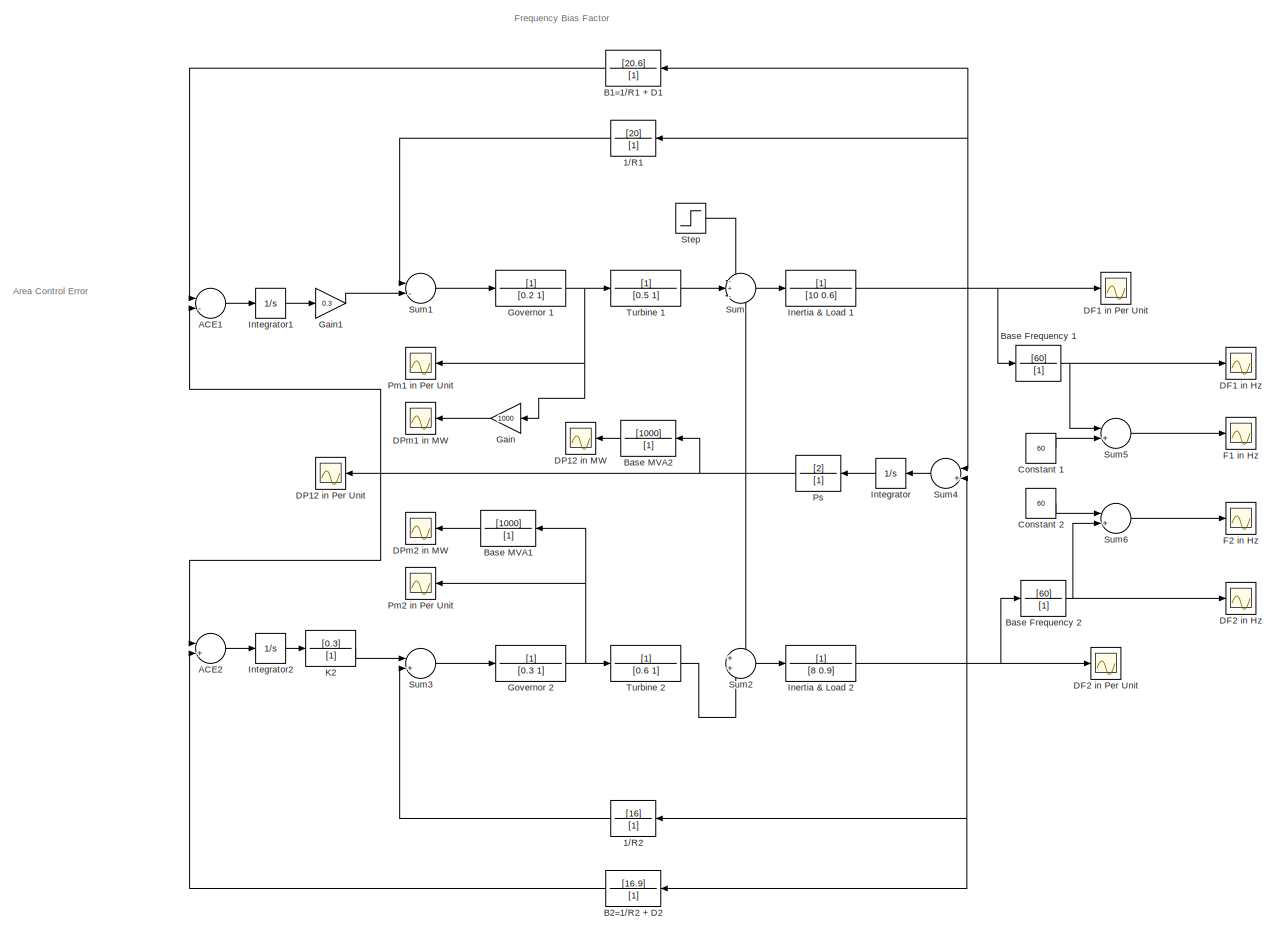
[diagram: root canvas - part 1/1, most of the canvas]
MODEL slx_37bb87ff518f
KIND model
CONFIG AbsTol = auto
CONFIG EnableMultiTasking = off
CONFIG FixedStep = auto
CONFIG MaxStep = auto
CONFIG MinStep = auto
CONFIG RelTol = 1e-3
CONFIG SampleTimeConstraint = Unconstrained
CONFIG Solver = VariableStepAuto
CONFIG SolverName = VariableStepAuto
CONFIG StartTime = 0.0
CONFIG StopTime = 50.0
BLOCK [TransferFcn] 1//R1
  Denominator = [1]
  Numerator = [20]
BLOCK [TransferFcn] 1//R2
  Denominator = [1]
  Numerator = [16]
BLOCK [Sum] ACE1
  Inputs = |--|
  Ports = [2, 1]
BLOCK [Sum] ACE2
  Inputs = |+-|
  Ports = [2, 1]
BLOCK [TransferFcn] B1=1//R1 + D1
  Denominator = [1]
  Numerator = [20.6]
BLOCK [TransferFcn] B2=1//R2 + D2
  Denominator = [1]
  Numerator = [16.9]
BLOCK [TransferFcn] Base Frequency 1
  Denominator = [1]
  Numerator = [60]
BLOCK [TransferFcn] Base Frequency 2
  Denominator = [1]
  Numerator = [60]
BLOCK [TransferFcn] Base MVA1
  Denominator = [1]
  Numerator = [1000]
BLOCK [TransferFcn] Base MVA2
  Denominator = [1]
  Numerator = [1000]
BLOCK [Constant] Constant 1
  Value = 60
BLOCK [Constant] Constant 2
  Value = 60
BLOCK [Scope] DF1 in Hz
  Floating = off
  NumInputPorts = 1
  Ports = [1]
  ScopeSpecificationString = Simulink.scopes.TimeScopeBlockCfg('CurrentConfiguration', extmgr.ConfigurationSet(extmgr.Configuration('Core','General UI',true),extmgr.Configuration('Core','Source UI',true),extmgr.Configuration('Sources','WiredSimulink',true,'DataLoggingVariableName','ScopeData5'),extmgr.Configuration('Visuals','Time Domain',true,'SerializedDisplays',{struct('MinYLimReal','-0.46057','MaxYLimReal','0.16322','YLab...<+1401ch>
BLOCK [Scope] DF1 in Per Unit
  Floating = off
  NumInputPorts = 1
  Ports = [1]
  ScopeSpecificationString = Simulink.scopes.TimeScopeBlockCfg('CurrentConfiguration', extmgr.ConfigurationSet(extmgr.Configuration('Core','General UI',true),extmgr.Configuration('Core','Source UI',true),extmgr.Configuration('Sources','WiredSimulink',true),extmgr.Configuration('Visuals','Time Domain',true,'SerializedDisplays',{struct('MinYLimReal','-0.00755','MaxYLimReal','0.00259','YLabelReal','','MinYLimMag','0.00000','MaxY...<+1369ch>
BLOCK [Scope] DF2 in Hz
  Floating = off
  NumInputPorts = 1
  Ports = [1]
  ScopeSpecificationString = Simulink.scopes.TimeScopeBlockCfg('CurrentConfiguration', extmgr.ConfigurationSet(extmgr.Configuration('Core','General UI',true),extmgr.Configuration('Core','Source UI',true),extmgr.Configuration('Sources','WiredSimulink',true,'DataLoggingVariableName','ScopeData6'),extmgr.Configuration('Visuals','Time Domain',true,'SerializedDisplays',{struct('MinYLimReal','-0.20439','MaxYLimReal','0.02271','YLab...<+1406ch>
BLOCK [Scope] DF2 in Per Unit
  Floating = off
  NumInputPorts = 1
  Ports = [1]
  ScopeSpecificationString = Simulink.scopes.TimeScopeBlockCfg('CurrentConfiguration', extmgr.ConfigurationSet(extmgr.Configuration('Core','General UI',true),extmgr.Configuration('Core','Source UI',true),extmgr.Configuration('Sources','WiredSimulink',true,'DataLoggingVariableName','ScopeData2'),extmgr.Configuration('Visuals','Time Domain',true,'SerializedDisplays',{struct('MinYLimReal','-0.00381','MaxYLimReal','0.00504','YLab...<+1372ch>
BLOCK [Scope] DP12 in MW
  Floating = off
  NumInputPorts = 1
  Ports = [1]
  ScopeSpecificationString = Simulink.scopes.TimeScopeBlockCfg('CurrentConfiguration', extmgr.ConfigurationSet(extmgr.Configuration('Core','General UI',true),extmgr.Configuration('Core','Source UI',true),extmgr.Configuration('Sources','WiredSimulink',true,'DataLoggingVariableName','ScopeData11'),extmgr.Configuration('Visuals','Time Domain',true,'SerializedDisplays',{struct('MinYLimReal','-36.85927','MaxYLimReal','4.09547','YL...<+1401ch>
BLOCK [Scope] DP12 in Per Unit
  Floating = off
  NumInputPorts = 1
  Ports = [1]
  ScopeSpecificationString = Simulink.scopes.TimeScopeBlockCfg('CurrentConfiguration', extmgr.ConfigurationSet(extmgr.Configuration('Core','General UI',true),extmgr.Configuration('Core','Source UI',true),extmgr.Configuration('Sources','WiredSimulink',true,'DataLoggingVariableName','ScopeData1'),extmgr.Configuration('Visuals','Time Domain',true,'SerializedDisplays',{struct('MinYLimReal','-0.03686','MaxYLimReal','0.0041','YLabe...<+1359ch>
BLOCK [Scope] DPm1 in MW
  Floating = off
  NumInputPorts = 1
  Ports = [1]
  ScopeSpecificationString = Simulink.scopes.TimeScopeBlockCfg('CurrentConfiguration', extmgr.ConfigurationSet(extmgr.Configuration('Core','General UI',true),extmgr.Configuration('Core','Source UI',true),extmgr.Configuration('Sources','WiredSimulink',true,'DataLoggingVariableName','ScopeData10'),extmgr.Configuration('Visuals','Time Domain',true,'SerializedDisplays',{struct('MinYLimReal','-38.58332','MaxYLimReal','347.24988','...<+1716ch>
BLOCK [Scope] DPm2 in MW
  Floating = off
  NumInputPorts = 1
  Ports = [1]
  ScopeSpecificationString = Simulink.scopes.TimeScopeBlockCfg('CurrentConfiguration', extmgr.ConfigurationSet(extmgr.Configuration('Core','General UI',true),extmgr.Configuration('Core','Source UI',true),extmgr.Configuration('Sources','WiredSimulink',true,'DataLoggingVariableName','ScopeData9'),extmgr.Configuration('Visuals','Time Domain',true,'SerializedDisplays',{struct('MinYLimReal','-5.87658','MaxYLimReal','52.88373','YLa...<+1446ch>
BLOCK [Scope] F1 in Hz
  Floating = off
  NumInputPorts = 1
  Ports = [1]
  ScopeSpecificationString = Simulink.scopes.TimeScopeBlockCfg('CurrentConfiguration', extmgr.ConfigurationSet(extmgr.Configuration('Core','General UI',true),extmgr.Configuration('Core','Source UI',true),extmgr.Configuration('Sources','WiredSimulink',true,'DataLoggingVariableName','ScopeData7'),extmgr.Configuration('Visuals','Time Domain',true,'SerializedDisplays',{struct('MinYLimReal','59.12552','MaxYLimReal','60.22037','YLa...<+1685ch>
BLOCK [Scope] F2 in Hz
  Floating = off
  NumInputPorts = 1
  Ports = [1]
  ScopeSpecificationString = Simulink.scopes.TimeScopeBlockCfg('CurrentConfiguration', extmgr.ConfigurationSet(extmgr.Configuration('Core','General UI',true),extmgr.Configuration('Core','Source UI',true),extmgr.Configuration('Sources','WiredSimulink',true,'DataLoggingVariableName','ScopeData8'),extmgr.Configuration('Visuals','Time Domain',true,'SerializedDisplays',{struct('MinYLimReal','59.79561','MaxYLimReal','60.02271','YLa...<+1467ch>
BLOCK [Gain] Gain
  Gain = 1000
BLOCK [Gain] Gain1
  Gain = 0.3
BLOCK [TransferFcn] Governor 1
  Denominator = [0.2 1]
BLOCK [TransferFcn] Governor 2
  Denominator = [0.3 1]
BLOCK [TransferFcn] Inertia & Load 1
  Denominator = [10 0.6]
BLOCK [TransferFcn] Inertia & Load 2
  Denominator = [8 0.9]
BLOCK [Integrator] Integrator
  Ports = [1, 1]
BLOCK [Integrator] Integrator1
  Ports = [1, 1]
BLOCK [Integrator] Integrator2
  Ports = [1, 1]
BLOCK [TransferFcn] K2
  Denominator = [1]
  Numerator = [0.3]
BLOCK [Scope] Pm1 in Per Unit
  Floating = off
  NumInputPorts = 1
  Ports = [1]
  ScopeSpecificationString = Simulink.scopes.TimeScopeBlockCfg('CurrentConfiguration', extmgr.ConfigurationSet(extmgr.Configuration('Core','General UI',true),extmgr.Configuration('Core','Source UI',true),extmgr.Configuration('Sources','WiredSimulink',true,'DataLoggingVariableName','ScopeData3'),extmgr.Configuration('Visuals','Time Domain',true,'SerializedDisplays',{struct('MinYLimReal','-0.03858','MaxYLimReal','0.34725','YLab...<+1369ch>
BLOCK [Scope] Pm2 in Per Unit
  Floating = off
  NumInputPorts = 1
  Ports = [1]
  ScopeSpecificationString = Simulink.scopes.TimeScopeBlockCfg('CurrentConfiguration', extmgr.ConfigurationSet(extmgr.Configuration('Core','General UI',true),extmgr.Configuration('Core','Source UI',true),extmgr.Configuration('Sources','WiredSimulink',true,'DataLoggingVariableName','ScopeData4'),extmgr.Configuration('Visuals','Time Domain',true,'SerializedDisplays',{struct('MinYLimReal','-0.00588','MaxYLimReal','0.05288','YLab...<+1397ch>
BLOCK [TransferFcn] Ps
  Denominator = [1]
  Numerator = [2]
BLOCK [Step] Step
  After = 0.1875
  Before = 0.1875
  SampleTime = 0
  Time = 100
BLOCK [Sum] Sum
  Inputs = -+-
  Ports = [3, 1]
BLOCK [Sum] Sum1
  Inputs = |-+|
  Ports = [2, 1]
BLOCK [Sum] Sum2
  Ports = [2, 1]
BLOCK [Sum] Sum3
  Inputs = |+-|
  Ports = [2, 1]
BLOCK [Sum] Sum4
  Inputs = |+-|
  Ports = [2, 1]
BLOCK [Sum] Sum5
  Inputs = |++|
  Ports = [2, 1]
BLOCK [Sum] Sum6
  Inputs = |++|
  Ports = [2, 1]
BLOCK [TransferFcn] Turbine 1
  Denominator = [0.5 1]
BLOCK [TransferFcn] Turbine 2
  Denominator = [0.6 1]
ANNOTATION (root): Area Control Error
ANNOTATION (root): Frequency Bias Factor
LINE 1//R1:1 -> Sum1:1
LINE 1//R2:1 -> Sum3:2
LINE ACE1:1 -> Integrator1:1
LINE ACE2:1 -> Integrator2:1
LINE B1=1//R1 + D1:1 -> ACE1:1
LINE B2=1//R2 + D2:1 -> ACE2:2
NET Base Frequency 1:1 -> DF1 in Hz:1, Sum5:1
NET Base Frequency 2:1 -> DF2 in Hz:1, Sum6:2
LINE Base MVA1:1 -> DPm2 in MW:1
LINE Base MVA2:1 -> DP12 in MW:1
LINE Constant 1:1 -> Sum5:2
LINE Constant 2:1 -> Sum6:1
LINE Gain1:1 -> Sum1:2
LINE Gain:1 -> DPm1 in MW:1
NET Governor 1:1 -> Gain:1, Pm1 in Per Unit:1, Turbine 1:1
NET Governor 2:1 -> Base MVA1:1, Pm2 in Per Unit:1, Turbine 2:1
NET Inertia & Load 1:1 -> 1//R1:1, B1=1//R1 + D1:1, Base Frequency 1:1, DF1 in Per Unit:1, Sum4:1
NET Inertia & Load 2:1 -> 1//R2:1, B2=1//R2 + D2:1, Base Frequency 2:1, DF2 in Per Unit:1, Sum4:2
LINE Integrator1:1 -> Gain1:1
LINE Integrator2:1 -> K2:1
LINE Integrator:1 -> Ps:1
LINE K2:1 -> Sum3:1
NET Ps:1 -> ACE1:2, ACE2:1, Base MVA2:1, DP12 in Per Unit:1, Sum2:1, Sum:3
LINE Step:1 -> Sum:1
LINE Sum1:1 -> Governor 1:1
LINE Sum2:1 -> Inertia & Load 2:1
LINE Sum3:1 -> Governor 2:1
LINE Sum4:1 -> Integrator:1
LINE Sum5:1 -> F1 in Hz:1
LINE Sum6:1 -> F2 in Hz:1
LINE Sum:1 -> Inertia & Load 1:1
LINE Turbine 1:1 -> Sum:2
LINE Turbine 2:1 -> Sum2:2
note: NET lines group one-source signal fan-out (src -> all destinations, sorted); 1:1 wires keep LINE
